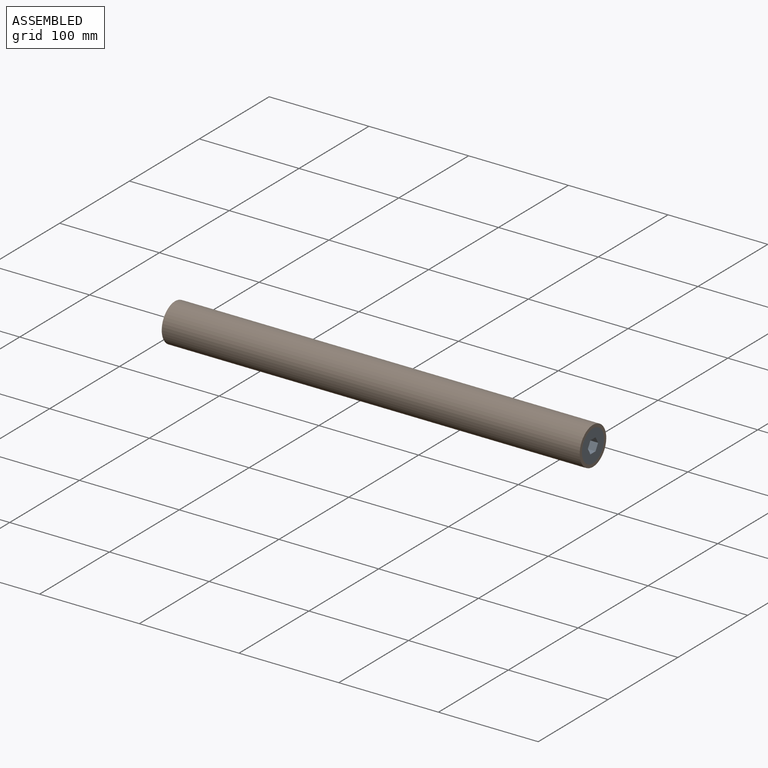
[diagram: assembled view]
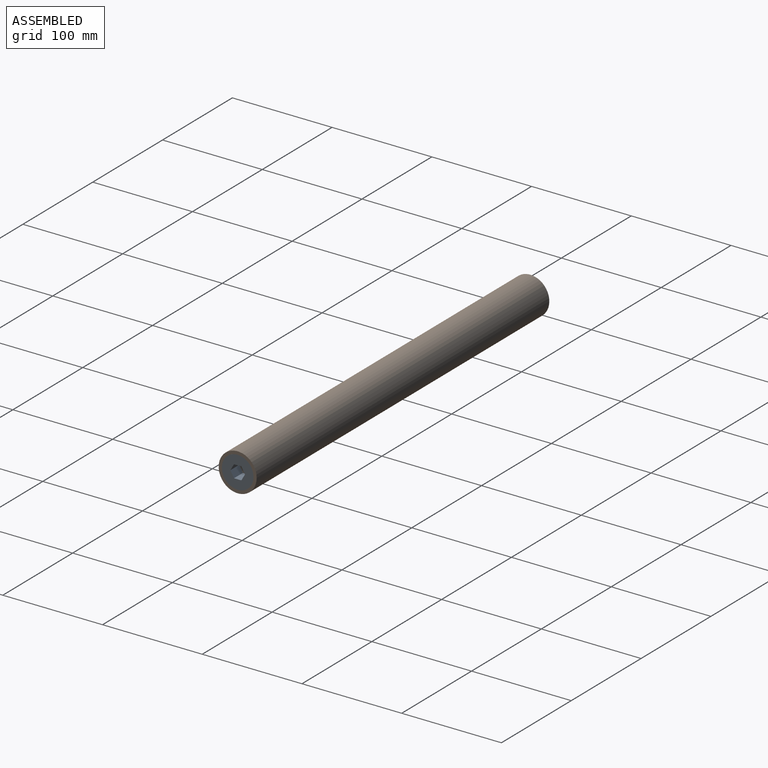
[diagram: assembled view, second angle]
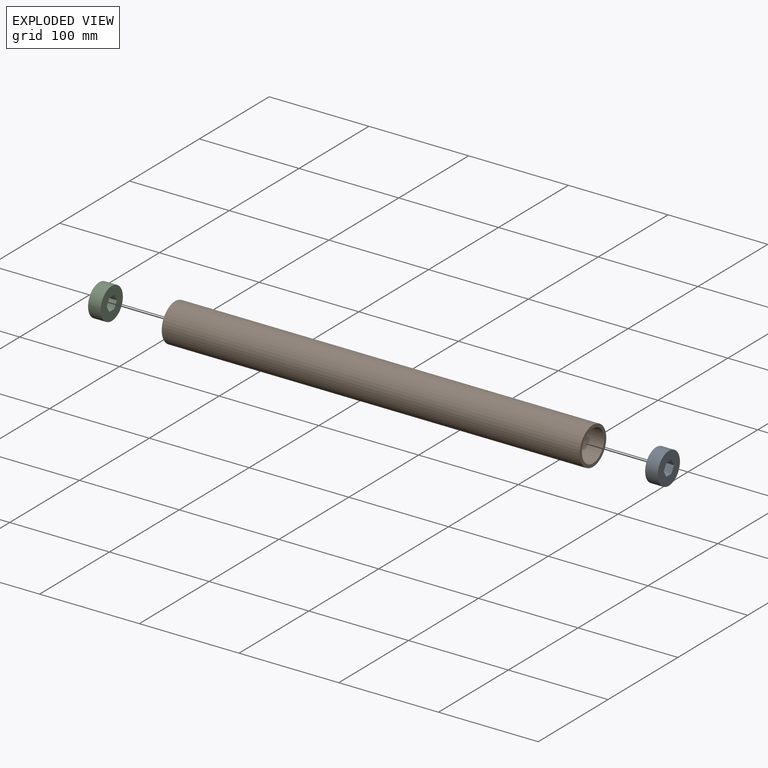
[diagram: exploded view]
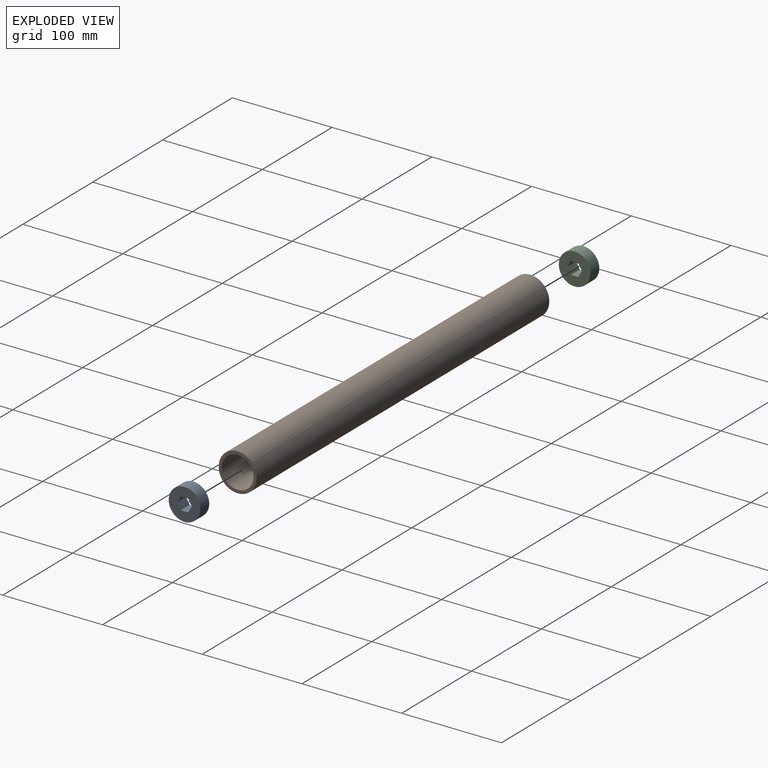
[diagram: exploded view, second angle]
ASSEMBLY  parts=3 mates=2
PART A: 9 faces, bbox 12.7x31.8x31.8 mm
  f0: cylinder r=15.88mm len=31.75mm, axis (-1,0,0), area 1266.8mm2, adj f1,f2
  f1: plane 31.75x31.75mm, normal (1,0,0), area 652mm2, adj f0,f3,f4,f5,f6,f7,f8
  f2: plane 31.75x31.75mm, normal (-1,0,0), area 652mm2, adj f0,f3,f4,f5,f6,f7,f8
  f3: plane 12.7x6.35mm, normal (0,-0.87,-0.5), area 93.1mm2, adj f1,f2,f4,f8
  f4: plane 12.7x6.35mm, normal (0,-0.87,0.5), area 93.1mm2, adj f1,f2,f3,f5
  f5: plane 12.7x7.33mm, normal (0,0,1), area 93.1mm2, adj f1,f2,f4,f6
  f6: plane 12.7x6.35mm, normal (0,0.87,0.5), area 93.1mm2, adj f1,f2,f5,f7
  f7: plane 12.7x6.35mm, normal (0,0.87,-0.5), area 93.1mm2, adj f1,f2,f6,f8
  f8: plane 12.7x7.33mm, normal (0,0,-1), area 93.1mm2, adj f1,f2,f3,f7
PART B: 4 faces, bbox 419.1x38.1x38.1 mm
  f0: cylinder r=19.05mm len=419.1mm, axis (-1,0,0), area 50164mm2, adj f1,f2
  f1: plane 38.1x38.1mm, normal (1,0,0), area 348.4mm2, adj f0,f3
  f2: plane 38.1x38.1mm, normal (-1,0,0), area 348.4mm2, adj f0,f3
  f3: cylinder r=15.88mm len=419.1mm, axis (1,0,0), area 41803.4mm2, adj f1,f2
PART C: same geometry as A
PLACE A t=(125.55,-47.72,63.86)mm
PLACE B t=(-280.85,-47.72,63.86)mm
PLACE C t=(-280.85,-47.72,63.86)mm
MATE fastened C.f0 <-> B.f0  axis (-1,0,0) through (-280.85,-47.72,63.86)mm
MATE fastened A.f0 <-> B.f0  axis (1,0,0) through (138.25,-47.72,63.86)mm
